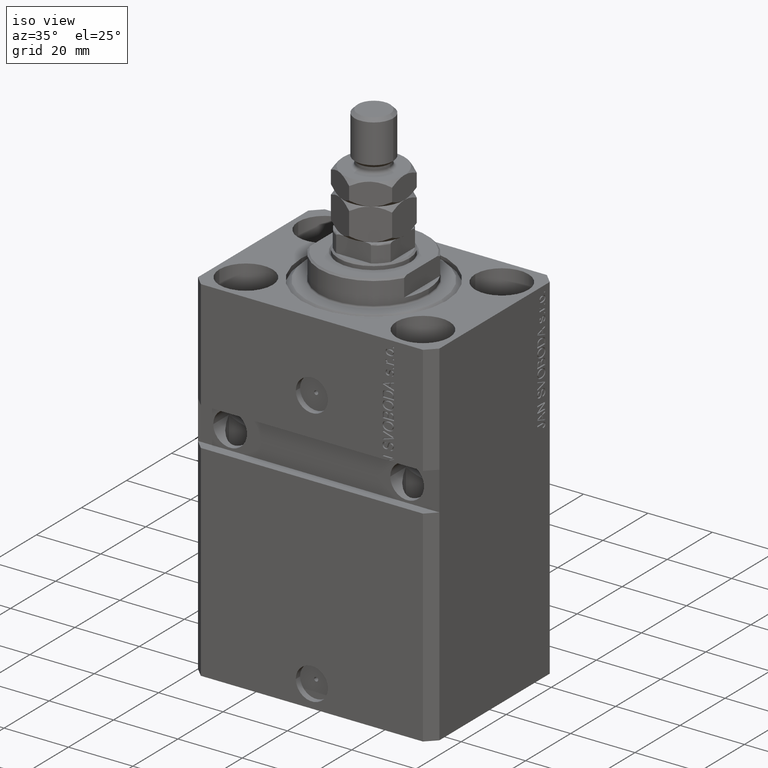
[diagram: clean part render]
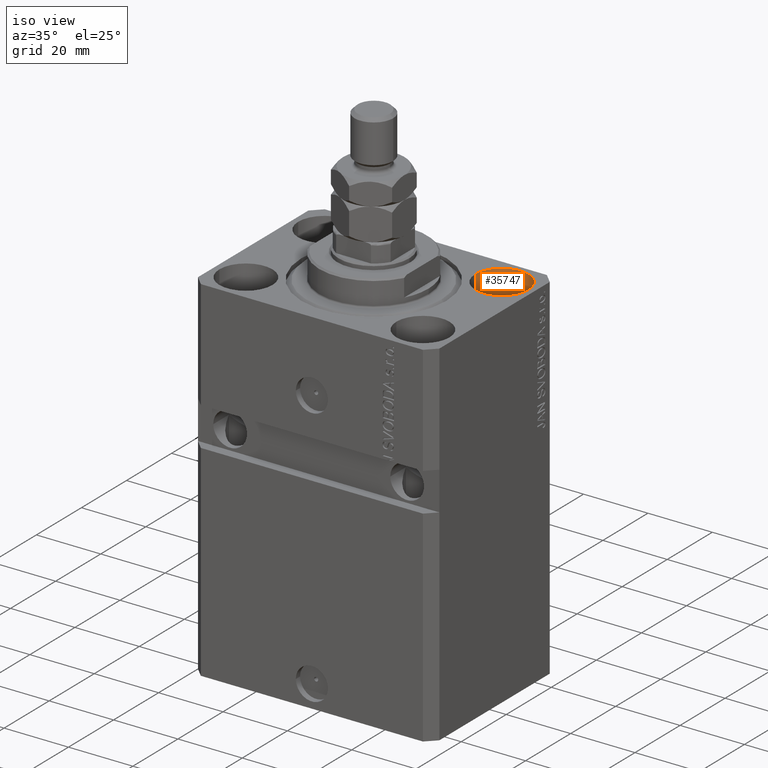
[diagram: same view with one face highlighted and labeled with its STEP entity id]
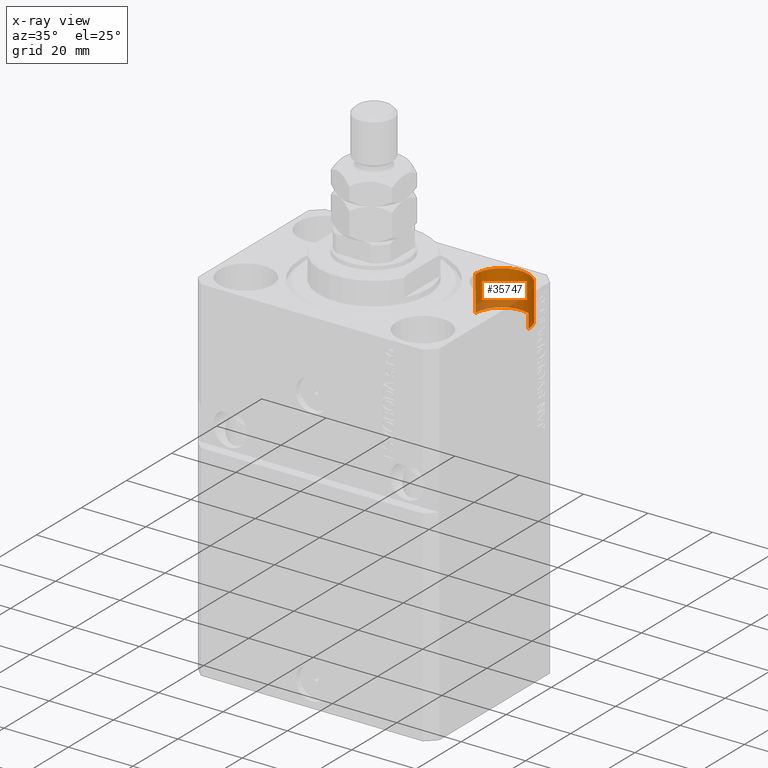
[diagram: x-ray of the same camera — body ghosted, the highlighted face saturated]
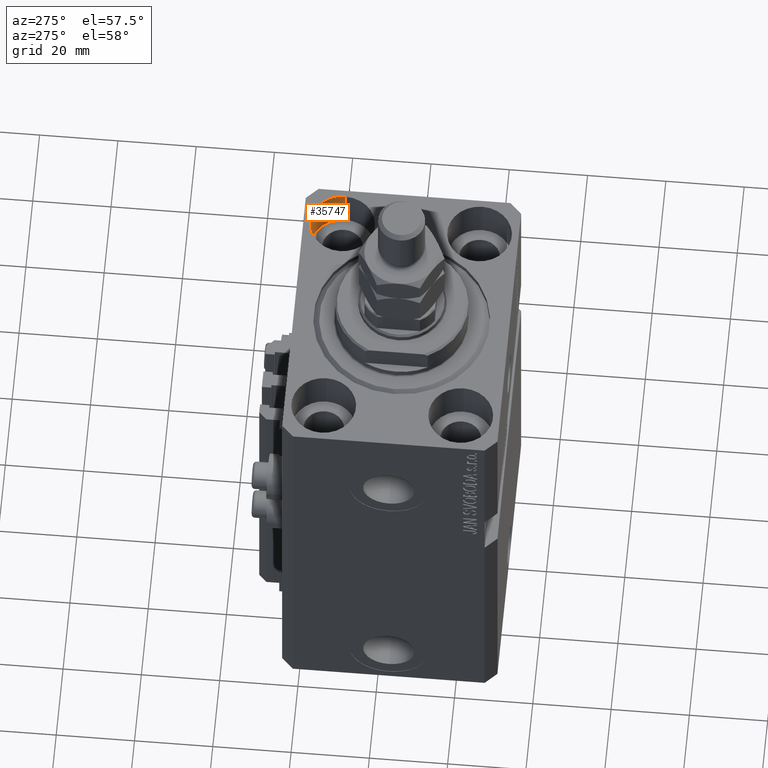
[diagram: same view with one face highlighted and labeled with its STEP entity id]
A machine part, iso view. The second image highlights one B-rep face of the part: STEP entity #35747.
The next image is the same camera in x-ray: the body ghosted, the highlighted face saturated — about 16% of this face is hidden behind the body in this view.
A second angle (auxiliary view) of the same face is appended — the face is thin or edge-on in the first view.
In plain terms, the highlighted cylindrical surface (edge-blend (fillet) strip) has radius 8.25 mm, axis along (0, 0, 1).
Its self-contained STEP definition (entity closure, byte-faithful):
#2319 = VECTOR ( 'NONE', #21496, 1000.000000000000000 ) ;
#4017 = DIRECTION ( 'NONE',  ( -0.000000000000000000, -0.000000000000000000, 1.000000000000000000 ) ) ;
#6569 = CARTESIAN_POINT ( 'NONE',  ( 35.74999999999999289, 17.50000000000001066, -11.00000000000000000 ) ) ;
#6861 = EDGE_CURVE ( 'NONE', #14021, #30865, #47924, .T. ) ;
#10343 = DIRECTION ( 'NONE',  ( 0.000000000000000000, 0.000000000000000000, 1.000000000000000000 ) ) ;
#12779 = ORIENTED_EDGE ( 'NONE', *, *, #6861, .T. ) ;
#14021 = VERTEX_POINT ( 'NONE', #19491 ) ;
#14490 = DIRECTION ( 'NONE',  ( 1.000000000000000000, 0.000000000000000000, 0.000000000000000000 ) ) ;
#16937 = VERTEX_POINT ( 'NONE', #33143 ) ;
#17983 = DIRECTION ( 'NONE',  ( 1.000000000000000000, 0.000000000000000000, 0.000000000000000000 ) ) ;
#19491 = CARTESIAN_POINT ( 'NONE',  ( 35.74999999999999289, 17.50000000000001066, -11.00000000000000000 ) ) ;
#19890 = ORIENTED_EDGE ( 'NONE', *, *, #43288, .F. ) ;
#20668 = CIRCLE ( 'NONE', #48020, 8.249999999999992895 ) ;
#21496 = DIRECTION ( 'NONE',  ( -0.000000000000000000, -0.000000000000000000, 1.000000000000000000 ) ) ;
#24579 = DIRECTION ( 'NONE',  ( -0.000000000000000000, -0.000000000000000000, 1.000000000000000000 ) ) ;
#24829 = FACE_OUTER_BOUND ( 'NONE', #44017, .T. ) ;
#26900 = EDGE_CURVE ( 'NONE', #30865, #34177, #20668, .T. ) ;
#26924 = CIRCLE ( 'NONE', #34737, 8.249999999999992895 ) ;
#27229 = LINE ( 'NONE', #45827, #35391 ) ;
#27494 = ORIENTED_EDGE ( 'NONE', *, *, #40069, .F. ) ;
#28200 = DIRECTION ( 'NONE',  ( 1.000000000000000000, 0.000000000000000000, 0.000000000000000000 ) ) ;
#29888 = CARTESIAN_POINT ( 'NONE',  ( 27.49999999999999645, 17.50000000000001066, -11.00000000000000000 ) ) ;
#30865 = VERTEX_POINT ( 'NONE', #38149 ) ;
#31131 = AXIS2_PLACEMENT_3D ( 'NONE', #39737, #24579, #17983 ) ;
#31868 = CARTESIAN_POINT ( 'NONE',  ( 27.49999999999999645, 17.50000000000001066, 0.000000000000000000 ) ) ;
#32306 = ORIENTED_EDGE ( 'NONE', *, *, #26900, .T. ) ;
#33143 = CARTESIAN_POINT ( 'NONE',  ( 19.25000000000000000, 17.50000000000001066, -11.00000000000000000 ) ) ;
#34177 = VERTEX_POINT ( 'NONE', #37141 ) ;
#34574 = DIRECTION ( 'NONE',  ( 0.000000000000000000, 0.000000000000000000, 1.000000000000000000 ) ) ;
#34737 = AXIS2_PLACEMENT_3D ( 'NONE', #29888, #10343, #14490 ) ;
#35391 = VECTOR ( 'NONE', #4017, 1000.000000000000000 ) ;
#35747 = ADVANCED_FACE ( 'NONE', ( #24829 ), #39983, .F. ) ;
#37141 = CARTESIAN_POINT ( 'NONE',  ( 19.25000000000000000, 17.50000000000001066, 0.000000000000000000 ) ) ;
#38149 = CARTESIAN_POINT ( 'NONE',  ( 35.74999999999999289, 17.50000000000001066, 0.000000000000000000 ) ) ;
#39737 = CARTESIAN_POINT ( 'NONE',  ( 27.49999999999999645, 17.50000000000001066, -11.00000000000000000 ) ) ;
#39983 = CYLINDRICAL_SURFACE ( 'NONE', #31131, 8.249999999999992895 ) ;
#40069 = EDGE_CURVE ( 'NONE', #16937, #34177, #27229, .T. ) ;
#43288 = EDGE_CURVE ( 'NONE', #14021, #16937, #26924, .T. ) ;
#44017 = EDGE_LOOP ( 'NONE', ( #27494, #19890, #12779, #32306 ) ) ;
#45827 = CARTESIAN_POINT ( 'NONE',  ( 19.25000000000000000, 17.50000000000001066, -11.00000000000000000 ) ) ;
#47924 = LINE ( 'NONE', #6569, #2319 ) ;
#48020 = AXIS2_PLACEMENT_3D ( 'NONE', #31868, #34574, #28200 ) ;